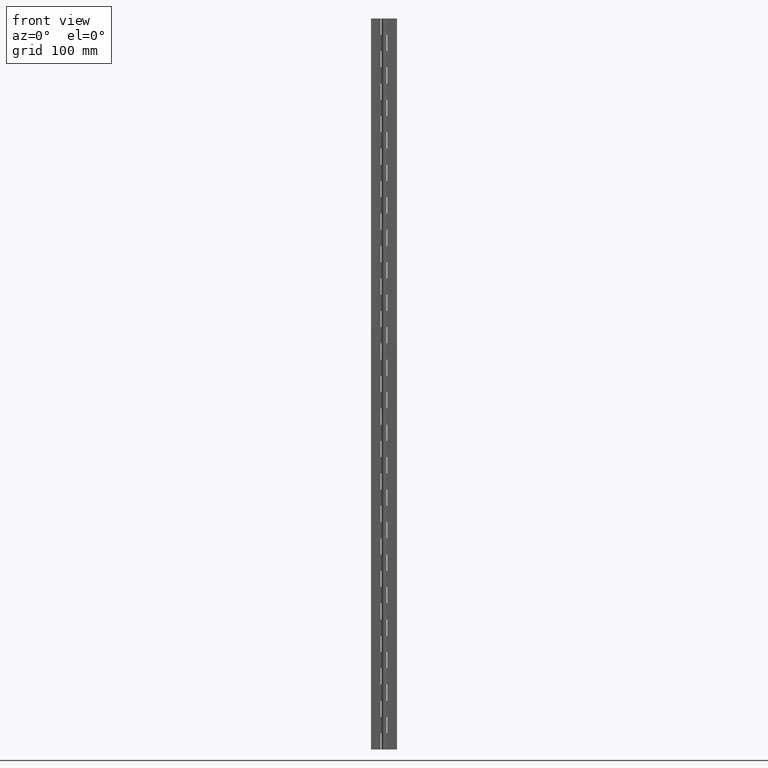
[diagram: clean part render]
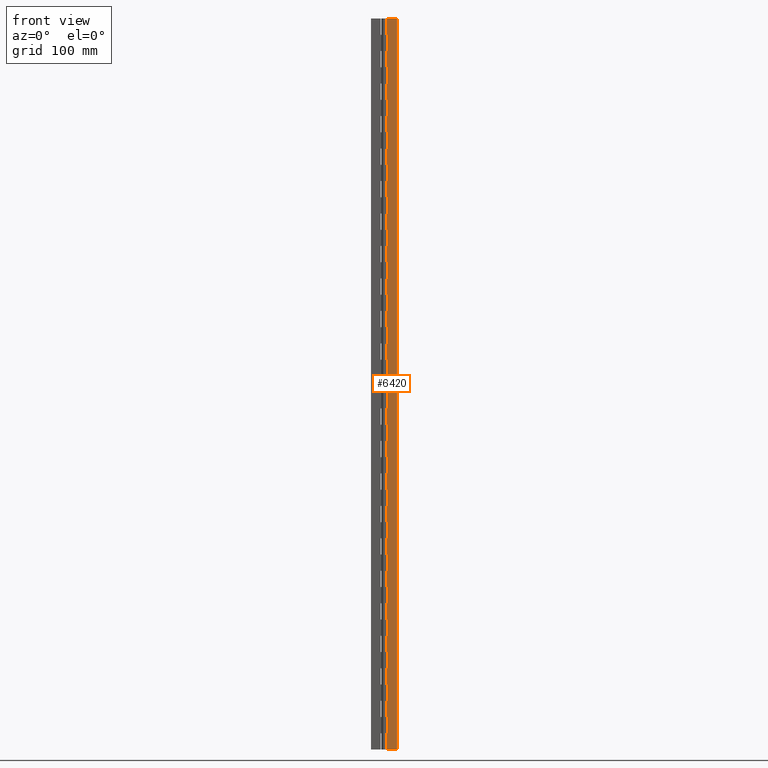
[diagram: same view with one face highlighted and labeled with its STEP entity id]
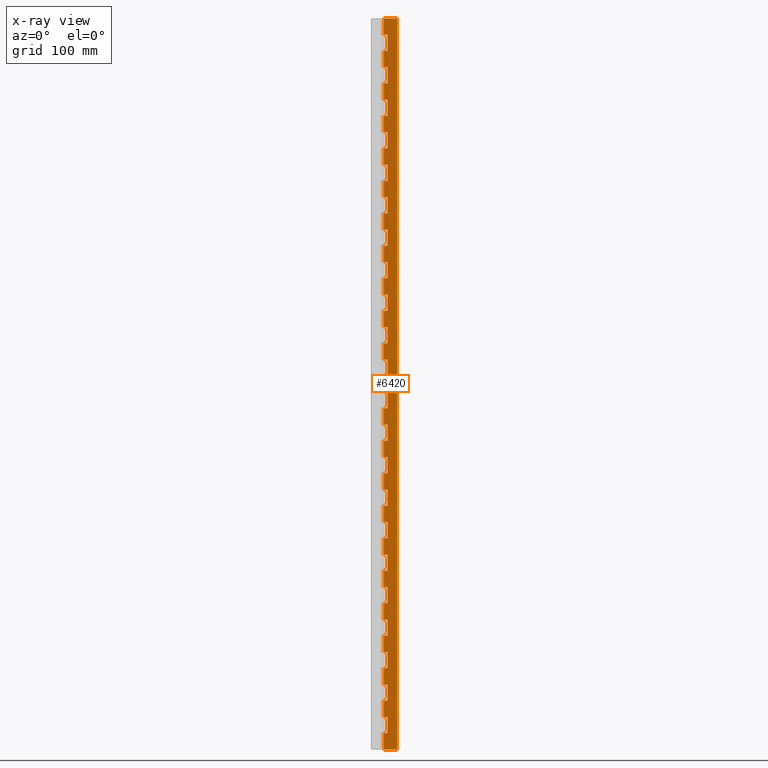
[diagram: x-ray of the same camera — body ghosted, the highlighted face saturated]
A machine part, front view. The second image highlights one B-rep face of the part: STEP entity #6420.
The next image is the same camera in x-ray: the body ghosted, the highlighted face saturated — about 0% of this face is hidden behind the body in this view.
In plain terms, the highlighted face is a freeform B-spline surface patch.
Its self-contained STEP definition (entity closure, byte-faithful):
#300=CARTESIAN_POINT('',(0.0,1.750000000000000,40.000021999999952));
#301=VERTEX_POINT('',#300);
#358=CARTESIAN_POINT('',(4.0,1.750000000000030,40.000021999999952));
#359=VERTEX_POINT('',#358);
#365=CARTESIAN_POINT('',(0.0,1.750000000000000,40.000021999999952));
#366=CARTESIAN_POINT('',(4.0,1.750000000000030,40.000021999999952));
#367=QUASI_UNIFORM_CURVE('',1,(#365,#366),.UNSPECIFIED.,.F.,.U.);
#368=EDGE_CURVE('',#301,#359,#367,.T.);
#386=CARTESIAN_POINT('',(4.0,1.750000000000030,20.000022000000051));
#387=VERTEX_POINT('',#386);
#393=CARTESIAN_POINT('',(4.0,1.750000000000030,40.000021999999952));
#394=CARTESIAN_POINT('',(4.0,1.750000000000030,20.000022000000051));
#395=QUASI_UNIFORM_CURVE('',1,(#393,#394),.UNSPECIFIED.,.F.,.U.);
#396=EDGE_CURVE('',#359,#387,#395,.T.);
#442=CARTESIAN_POINT('',(0.0,1.750000000000000,20.000022000000051));
#443=VERTEX_POINT('',#442);
#463=CARTESIAN_POINT('',(4.0,1.750000000000030,20.000022000000051));
#464=CARTESIAN_POINT('',(0.0,1.750000000000000,20.000022000000051));
#465=QUASI_UNIFORM_CURVE('',1,(#463,#464),.UNSPECIFIED.,.F.,.U.);
#466=EDGE_CURVE('',#387,#443,#465,.T.);
#476=CARTESIAN_POINT('',(0.0,1.750000000000000,80.000021999999888));
#477=VERTEX_POINT('',#476);
#534=CARTESIAN_POINT('',(4.0,1.750000000000030,80.000021999999888));
#535=VERTEX_POINT('',#534);
#541=CARTESIAN_POINT('',(0.0,1.750000000000000,80.000021999999888));
#542=CARTESIAN_POINT('',(4.0,1.750000000000030,80.000021999999888));
#543=QUASI_UNIFORM_CURVE('',1,(#541,#542),.UNSPECIFIED.,.F.,.U.);
#544=EDGE_CURVE('',#477,#535,#543,.T.);
#562=CARTESIAN_POINT('',(4.0,1.750000000000030,60.000022000000001));
#563=VERTEX_POINT('',#562);
#569=CARTESIAN_POINT('',(4.0,1.750000000000030,80.000021999999888));
#570=CARTESIAN_POINT('',(4.0,1.750000000000030,60.000022000000001));
#571=QUASI_UNIFORM_CURVE('',1,(#569,#570),.UNSPECIFIED.,.F.,.U.);
#572=EDGE_CURVE('',#535,#563,#571,.T.);
#618=CARTESIAN_POINT('',(0.0,1.750000000000000,60.000022000000001));
#619=VERTEX_POINT('',#618);
#639=CARTESIAN_POINT('',(4.0,1.750000000000030,60.000022000000001));
#640=CARTESIAN_POINT('',(0.0,1.750000000000000,60.000022000000001));
#641=QUASI_UNIFORM_CURVE('',1,(#639,#640),.UNSPECIFIED.,.F.,.U.);
#642=EDGE_CURVE('',#563,#619,#641,.T.);
#652=CARTESIAN_POINT('',(0.0,1.750000000000000,120.000022000000000));
#653=VERTEX_POINT('',#652);
#710=CARTESIAN_POINT('',(4.0,1.750000000000030,120.000022000000000));
#711=VERTEX_POINT('',#710);
#717=CARTESIAN_POINT('',(0.0,1.750000000000000,120.000022000000000));
#718=CARTESIAN_POINT('',(4.0,1.750000000000030,120.000022000000000));
#719=QUASI_UNIFORM_CURVE('',1,(#717,#718),.UNSPECIFIED.,.F.,.U.);
#720=EDGE_CURVE('',#653,#711,#719,.T.);
#738=CARTESIAN_POINT('',(4.0,1.750000000000030,100.000022000000000));
#739=VERTEX_POINT('',#738);
#745=CARTESIAN_POINT('',(4.0,1.750000000000030,120.000022000000000));
#746=CARTESIAN_POINT('',(4.0,1.750000000000030,100.000022000000000));
#747=QUASI_UNIFORM_CURVE('',1,(#745,#746),.UNSPECIFIED.,.F.,.U.);
#748=EDGE_CURVE('',#711,#739,#747,.T.);
#794=CARTESIAN_POINT('',(0.0,1.750000000000000,100.000022000000000));
#795=VERTEX_POINT('',#794);
#815=CARTESIAN_POINT('',(4.0,1.750000000000030,100.000022000000000));
#816=CARTESIAN_POINT('',(0.0,1.750000000000000,100.000022000000000));
#817=QUASI_UNIFORM_CURVE('',1,(#815,#816),.UNSPECIFIED.,.F.,.U.);
#818=EDGE_CURVE('',#739,#795,#817,.T.);
#828=CARTESIAN_POINT('',(0.0,1.750000000000000,160.000022000000000));
#829=VERTEX_POINT('',#828);
#886=CARTESIAN_POINT('',(4.0,1.750000000000030,160.000022000000000));
#887=VERTEX_POINT('',#886);
#893=CARTESIAN_POINT('',(0.0,1.750000000000000,160.000022000000000));
#894=CARTESIAN_POINT('',(4.0,1.750000000000030,160.000022000000000));
#895=QUASI_UNIFORM_CURVE('',1,(#893,#894),.UNSPECIFIED.,.F.,.U.);
#896=EDGE_CURVE('',#829,#887,#895,.T.);
#914=CARTESIAN_POINT('',(4.0,1.750000000000030,140.000022000000000));
#915=VERTEX_POINT('',#914);
#921=CARTESIAN_POINT('',(4.0,1.750000000000030,160.000022000000000));
#922=CARTESIAN_POINT('',(4.0,1.750000000000030,140.000022000000000));
#923=QUASI_UNIFORM_CURVE('',1,(#921,#922),.UNSPECIFIED.,.F.,.U.);
#924=EDGE_CURVE('',#887,#915,#923,.T.);
#970=CARTESIAN_POINT('',(0.0,1.750000000000000,140.000022000000000));
#971=VERTEX_POINT('',#970);
#991=CARTESIAN_POINT('',(4.0,1.750000000000030,140.000022000000000));
#992=CARTESIAN_POINT('',(0.0,1.750000000000000,140.000022000000000));
#993=QUASI_UNIFORM_CURVE('',1,(#991,#992),.UNSPECIFIED.,.F.,.U.);
#994=EDGE_CURVE('',#915,#971,#993,.T.);
#1004=CARTESIAN_POINT('',(0.0,1.750000000000000,200.000022000000000));
#1005=VERTEX_POINT('',#1004);
#1062=CARTESIAN_POINT('',(4.0,1.750000000000030,200.000022000000000));
#1063=VERTEX_POINT('',#1062);
#1069=CARTESIAN_POINT('',(0.0,1.750000000000000,200.000022000000000));
#1070=CARTESIAN_POINT('',(4.0,1.750000000000030,200.000022000000000));
#1071=QUASI_UNIFORM_CURVE('',1,(#1069,#1070),.UNSPECIFIED.,.F.,.U.);
#1072=EDGE_CURVE('',#1005,#1063,#1071,.T.);
#1090=CARTESIAN_POINT('',(4.0,1.750000000000030,180.000022000000000));
#1091=VERTEX_POINT('',#1090);
#1097=CARTESIAN_POINT('',(4.0,1.750000000000030,200.000022000000000));
#1098=CARTESIAN_POINT('',(4.0,1.750000000000030,180.000022000000000));
#1099=QUASI_UNIFORM_CURVE('',1,(#1097,#1098),.UNSPECIFIED.,.F.,.U.);
#1100=EDGE_CURVE('',#1063,#1091,#1099,.T.);
#1146=CARTESIAN_POINT('',(0.0,1.750000000000000,180.000022000000000));
#1147=VERTEX_POINT('',#1146);
#1167=CARTESIAN_POINT('',(4.0,1.750000000000030,180.000022000000000));
#1168=CARTESIAN_POINT('',(0.0,1.750000000000000,180.000022000000000));
#1169=QUASI_UNIFORM_CURVE('',1,(#1167,#1168),.UNSPECIFIED.,.F.,.U.);
#1170=EDGE_CURVE('',#1091,#1147,#1169,.T.);
#1180=CARTESIAN_POINT('',(0.0,1.750000000000000,240.000022000000000));
#1181=VERTEX_POINT('',#1180);
#1238=CARTESIAN_POINT('',(4.0,1.750000000000030,240.000022000000000));
#1239=VERTEX_POINT('',#1238);
#1245=CARTESIAN_POINT('',(0.0,1.750000000000000,240.000022000000000));
#1246=CARTESIAN_POINT('',(4.0,1.750000000000030,240.000022000000000));
#1247=QUASI_UNIFORM_CURVE('',1,(#1245,#1246),.UNSPECIFIED.,.F.,.U.);
#1248=EDGE_CURVE('',#1181,#1239,#1247,.T.);
#1266=CARTESIAN_POINT('',(4.0,1.750000000000030,220.000022000000000));
#1267=VERTEX_POINT('',#1266);
#1273=CARTESIAN_POINT('',(4.0,1.750000000000030,240.000022000000000));
#1274=CARTESIAN_POINT('',(4.0,1.750000000000030,220.000022000000000));
#1275=QUASI_UNIFORM_CURVE('',1,(#1273,#1274),.UNSPECIFIED.,.F.,.U.);
#1276=EDGE_CURVE('',#1239,#1267,#1275,.T.);
#1322=CARTESIAN_POINT('',(0.0,1.750000000000000,220.000022000000000));
#1323=VERTEX_POINT('',#1322);
#1343=CARTESIAN_POINT('',(4.0,1.750000000000030,220.000022000000000));
#1344=CARTESIAN_POINT('',(0.0,1.750000000000000,220.000022000000000));
#1345=QUASI_UNIFORM_CURVE('',1,(#1343,#1344),.UNSPECIFIED.,.F.,.U.);
#1346=EDGE_CURVE('',#1267,#1323,#1345,.T.);
#1356=CARTESIAN_POINT('',(0.0,1.750000000000000,280.000022000000000));
#1357=VERTEX_POINT('',#1356);
#1414=CARTESIAN_POINT('',(4.0,1.750000000000030,280.000022000000000));
#1415=VERTEX_POINT('',#1414);
#1421=CARTESIAN_POINT('',(0.0,1.750000000000000,280.000022000000000));
#1422=CARTESIAN_POINT('',(4.0,1.750000000000030,280.000022000000000));
#1423=QUASI_UNIFORM_CURVE('',1,(#1421,#1422),.UNSPECIFIED.,.F.,.U.);
#1424=EDGE_CURVE('',#1357,#1415,#1423,.T.);
#1442=CARTESIAN_POINT('',(4.0,1.750000000000030,260.000022000000000));
#1443=VERTEX_POINT('',#1442);
#1449=CARTESIAN_POINT('',(4.0,1.750000000000030,280.000022000000000));
#1450=CARTESIAN_POINT('',(4.0,1.750000000000030,260.000022000000000));
#1451=QUASI_UNIFORM_CURVE('',1,(#1449,#1450),.UNSPECIFIED.,.F.,.U.);
#1452=EDGE_CURVE('',#1415,#1443,#1451,.T.);
#1498=CARTESIAN_POINT('',(0.0,1.750000000000000,260.000022000000000));
#1499=VERTEX_POINT('',#1498);
#1519=CARTESIAN_POINT('',(4.0,1.750000000000030,260.000022000000000));
#1520=CARTESIAN_POINT('',(0.0,1.750000000000000,260.000022000000000));
#1521=QUASI_UNIFORM_CURVE('',1,(#1519,#1520),.UNSPECIFIED.,.F.,.U.);
#1522=EDGE_CURVE('',#1443,#1499,#1521,.T.);
#1532=CARTESIAN_POINT('',(0.0,1.750000000000000,320.000022000000000));
#1533=VERTEX_POINT('',#1532);
#1590=CARTESIAN_POINT('',(4.0,1.750000000000030,320.000022000000000));
#1591=VERTEX_POINT('',#1590);
#1597=CARTESIAN_POINT('',(0.0,1.750000000000000,320.000022000000000));
#1598=CARTESIAN_POINT('',(4.0,1.750000000000030,320.000022000000000));
#1599=QUASI_UNIFORM_CURVE('',1,(#1597,#1598),.UNSPECIFIED.,.F.,.U.);
#1600=EDGE_CURVE('',#1533,#1591,#1599,.T.);
#1618=CARTESIAN_POINT('',(4.0,1.750000000000030,300.000022000000000));
#1619=VERTEX_POINT('',#1618);
#1625=CARTESIAN_POINT('',(4.0,1.750000000000030,320.000022000000000));
#1626=CARTESIAN_POINT('',(4.0,1.750000000000030,300.000022000000000));
#1627=QUASI_UNIFORM_CURVE('',1,(#1625,#1626),.UNSPECIFIED.,.F.,.U.);
#1628=EDGE_CURVE('',#1591,#1619,#1627,.T.);
#1674=CARTESIAN_POINT('',(0.0,1.750000000000000,300.000022000000000));
#1675=VERTEX_POINT('',#1674);
#1695=CARTESIAN_POINT('',(4.0,1.750000000000030,300.000022000000000));
#1696=CARTESIAN_POINT('',(0.0,1.750000000000000,300.000022000000000));
#1697=QUASI_UNIFORM_CURVE('',1,(#1695,#1696),.UNSPECIFIED.,.F.,.U.);
#1698=EDGE_CURVE('',#1619,#1675,#1697,.T.);
#1708=CARTESIAN_POINT('',(0.0,1.750000000000000,360.000022000000000));
#1709=VERTEX_POINT('',#1708);
#1766=CARTESIAN_POINT('',(4.0,1.750000000000030,360.000022000000000));
#1767=VERTEX_POINT('',#1766);
#1773=CARTESIAN_POINT('',(0.0,1.750000000000000,360.000022000000000));
#1774=CARTESIAN_POINT('',(4.0,1.750000000000030,360.000022000000000));
#1775=QUASI_UNIFORM_CURVE('',1,(#1773,#1774),.UNSPECIFIED.,.F.,.U.);
#1776=EDGE_CURVE('',#1709,#1767,#1775,.T.);
#1794=CARTESIAN_POINT('',(4.0,1.750000000000030,340.000022000000000));
#1795=VERTEX_POINT('',#1794);
#1801=CARTESIAN_POINT('',(4.0,1.750000000000030,360.000022000000000));
#1802=CARTESIAN_POINT('',(4.0,1.750000000000030,340.000022000000000));
#1803=QUASI_UNIFORM_CURVE('',1,(#1801,#1802),.UNSPECIFIED.,.F.,.U.);
#1804=EDGE_CURVE('',#1767,#1795,#1803,.T.);
#1850=CARTESIAN_POINT('',(0.0,1.750000000000000,340.000022000000000));
#1851=VERTEX_POINT('',#1850);
#1871=CARTESIAN_POINT('',(4.0,1.750000000000030,340.000022000000000));
#1872=CARTESIAN_POINT('',(0.0,1.750000000000000,340.000022000000000));
#1873=QUASI_UNIFORM_CURVE('',1,(#1871,#1872),.UNSPECIFIED.,.F.,.U.);
#1874=EDGE_CURVE('',#1795,#1851,#1873,.T.);
#1884=CARTESIAN_POINT('',(0.0,1.750000000000000,400.000022000000000));
#1885=VERTEX_POINT('',#1884);
#1942=CARTESIAN_POINT('',(4.0,1.750000000000030,400.000022000000000));
#1943=VERTEX_POINT('',#1942);
#1949=CARTESIAN_POINT('',(0.0,1.750000000000000,400.000022000000000));
#1950=CARTESIAN_POINT('',(4.0,1.750000000000030,400.000022000000000));
#1951=QUASI_UNIFORM_CURVE('',1,(#1949,#1950),.UNSPECIFIED.,.F.,.U.);
#1952=EDGE_CURVE('',#1885,#1943,#1951,.T.);
#1970=CARTESIAN_POINT('',(4.0,1.750000000000030,380.000022000000000));
#1971=VERTEX_POINT('',#1970);
#1977=CARTESIAN_POINT('',(4.0,1.750000000000030,400.000022000000000));
#1978=CARTESIAN_POINT('',(4.0,1.750000000000030,380.000022000000000));
#1979=QUASI_UNIFORM_CURVE('',1,(#1977,#1978),.UNSPECIFIED.,.F.,.U.);
#1980=EDGE_CURVE('',#1943,#1971,#1979,.T.);
#2026=CARTESIAN_POINT('',(0.0,1.750000000000000,380.000022000000000));
#2027=VERTEX_POINT('',#2026);
#2047=CARTESIAN_POINT('',(4.0,1.750000000000030,380.000022000000000));
#2048=CARTESIAN_POINT('',(0.0,1.750000000000000,380.000022000000000));
#2049=QUASI_UNIFORM_CURVE('',1,(#2047,#2048),.UNSPECIFIED.,.F.,.U.);
#2050=EDGE_CURVE('',#1971,#2027,#2049,.T.);
#2060=CARTESIAN_POINT('',(0.0,1.750000000000000,440.000022000000000));
#2061=VERTEX_POINT('',#2060);
#2118=CARTESIAN_POINT('',(4.0,1.750000000000030,440.000022000000000));
#2119=VERTEX_POINT('',#2118);
#2125=CARTESIAN_POINT('',(0.0,1.750000000000000,440.000022000000000));
#2126=CARTESIAN_POINT('',(4.0,1.750000000000030,440.000022000000000));
#2127=QUASI_UNIFORM_CURVE('',1,(#2125,#2126),.UNSPECIFIED.,.F.,.U.);
#2128=EDGE_CURVE('',#2061,#2119,#2127,.T.);
#2146=CARTESIAN_POINT('',(4.0,1.750000000000030,420.000021999999890));
#2147=VERTEX_POINT('',#2146);
#2153=CARTESIAN_POINT('',(4.0,1.750000000000030,440.000022000000000));
#2154=CARTESIAN_POINT('',(4.0,1.750000000000030,420.000021999999890));
#2155=QUASI_UNIFORM_CURVE('',1,(#2153,#2154),.UNSPECIFIED.,.F.,.U.);
#2156=EDGE_CURVE('',#2119,#2147,#2155,.T.);
#2202=CARTESIAN_POINT('',(0.0,1.750000000000000,420.000021999999890));
#2203=VERTEX_POINT('',#2202);
#2223=CARTESIAN_POINT('',(4.0,1.750000000000030,420.000021999999890));
#2224=CARTESIAN_POINT('',(0.0,1.750000000000000,420.000021999999890));
#2225=QUASI_UNIFORM_CURVE('',1,(#2223,#2224),.UNSPECIFIED.,.F.,.U.);
#2226=EDGE_CURVE('',#2147,#2203,#2225,.T.);
#2236=CARTESIAN_POINT('',(0.0,1.750000000000000,480.000022000000000));
#2237=VERTEX_POINT('',#2236);
#2294=CARTESIAN_POINT('',(4.0,1.750000000000030,480.000022000000000));
#2295=VERTEX_POINT('',#2294);
#2301=CARTESIAN_POINT('',(0.0,1.750000000000000,480.000022000000000));
#2302=CARTESIAN_POINT('',(4.0,1.750000000000030,480.000022000000000));
#2303=QUASI_UNIFORM_CURVE('',1,(#2301,#2302),.UNSPECIFIED.,.F.,.U.);
#2304=EDGE_CURVE('',#2237,#2295,#2303,.T.);
#2322=CARTESIAN_POINT('',(4.0,1.750000000000030,460.000022000000000));
#2323=VERTEX_POINT('',#2322);
#2329=CARTESIAN_POINT('',(4.0,1.750000000000030,480.000022000000000));
#2330=CARTESIAN_POINT('',(4.0,1.750000000000030,460.000022000000000));
#2331=QUASI_UNIFORM_CURVE('',1,(#2329,#2330),.UNSPECIFIED.,.F.,.U.);
#2332=EDGE_CURVE('',#2295,#2323,#2331,.T.);
#2378=CARTESIAN_POINT('',(0.0,1.750000000000000,460.000022000000000));
#2379=VERTEX_POINT('',#2378);
#2399=CARTESIAN_POINT('',(4.0,1.750000000000030,460.000022000000000));
#2400=CARTESIAN_POINT('',(0.0,1.750000000000000,460.000022000000000));
#2401=QUASI_UNIFORM_CURVE('',1,(#2399,#2400),.UNSPECIFIED.,.F.,.U.);
#2402=EDGE_CURVE('',#2323,#2379,#2401,.T.);
#2412=CARTESIAN_POINT('',(0.0,1.750000000000000,520.000021999999940));
#2413=VERTEX_POINT('',#2412);
#2470=CARTESIAN_POINT('',(4.0,1.750000000000030,520.000021999999940));
#2471=VERTEX_POINT('',#2470);
#2477=CARTESIAN_POINT('',(0.0,1.750000000000000,520.000021999999940));
#2478=CARTESIAN_POINT('',(4.0,1.750000000000030,520.000021999999940));
#2479=QUASI_UNIFORM_CURVE('',1,(#2477,#2478),.UNSPECIFIED.,.F.,.U.);
#2480=EDGE_CURVE('',#2413,#2471,#2479,.T.);
#2498=CARTESIAN_POINT('',(4.0,1.750000000000030,500.000022000000110));
#2499=VERTEX_POINT('',#2498);
#2505=CARTESIAN_POINT('',(4.0,1.750000000000030,520.000021999999940));
#2506=CARTESIAN_POINT('',(4.0,1.750000000000030,500.000022000000110));
#2507=QUASI_UNIFORM_CURVE('',1,(#2505,#2506),.UNSPECIFIED.,.F.,.U.);
#2508=EDGE_CURVE('',#2471,#2499,#2507,.T.);
#2554=CARTESIAN_POINT('',(0.0,1.750000000000000,500.000022000000110));
#2555=VERTEX_POINT('',#2554);
#2575=CARTESIAN_POINT('',(4.0,1.750000000000030,500.000022000000110));
#2576=CARTESIAN_POINT('',(0.0,1.750000000000000,500.000022000000110));
#2577=QUASI_UNIFORM_CURVE('',1,(#2575,#2576),.UNSPECIFIED.,.F.,.U.);
#2578=EDGE_CURVE('',#2499,#2555,#2577,.T.);
#2588=CARTESIAN_POINT('',(0.0,1.750000000000000,560.000021999999940));
#2589=VERTEX_POINT('',#2588);
#2646=CARTESIAN_POINT('',(4.0,1.750000000000030,560.000021999999940));
#2647=VERTEX_POINT('',#2646);
#2653=CARTESIAN_POINT('',(0.0,1.750000000000000,560.000021999999940));
#2654=CARTESIAN_POINT('',(4.0,1.750000000000030,560.000021999999940));
#2655=QUASI_UNIFORM_CURVE('',1,(#2653,#2654),.UNSPECIFIED.,.F.,.U.);
#2656=EDGE_CURVE('',#2589,#2647,#2655,.T.);
#2674=CARTESIAN_POINT('',(4.0,1.750000000000030,540.000021999999940));
#2675=VERTEX_POINT('',#2674);
#2681=CARTESIAN_POINT('',(4.0,1.750000000000030,560.000021999999940));
#2682=CARTESIAN_POINT('',(4.0,1.750000000000030,540.000021999999940));
#2683=QUASI_UNIFORM_CURVE('',1,(#2681,#2682),.UNSPECIFIED.,.F.,.U.);
#2684=EDGE_CURVE('',#2647,#2675,#2683,.T.);
#2730=CARTESIAN_POINT('',(0.0,1.750000000000000,540.000021999999940));
#2731=VERTEX_POINT('',#2730);
#2751=CARTESIAN_POINT('',(4.0,1.750000000000030,540.000021999999940));
#2752=CARTESIAN_POINT('',(0.0,1.750000000000000,540.000021999999940));
#2753=QUASI_UNIFORM_CURVE('',1,(#2751,#2752),.UNSPECIFIED.,.F.,.U.);
#2754=EDGE_CURVE('',#2675,#2731,#2753,.T.);
#2764=CARTESIAN_POINT('',(0.0,1.750000000000000,600.000022000000060));
#2765=VERTEX_POINT('',#2764);
#2822=CARTESIAN_POINT('',(4.0,1.750000000000030,600.000022000000060));
#2823=VERTEX_POINT('',#2822);
#2829=CARTESIAN_POINT('',(0.0,1.750000000000000,600.000022000000060));
#2830=CARTESIAN_POINT('',(4.0,1.750000000000030,600.000022000000060));
#2831=QUASI_UNIFORM_CURVE('',1,(#2829,#2830),.UNSPECIFIED.,.F.,.U.);
#2832=EDGE_CURVE('',#2765,#2823,#2831,.T.);
#2850=CARTESIAN_POINT('',(4.0,1.750000000000030,580.000022000000060));
#2851=VERTEX_POINT('',#2850);
#2857=CARTESIAN_POINT('',(4.0,1.750000000000030,600.000022000000060));
#2858=CARTESIAN_POINT('',(4.0,1.750000000000030,580.000022000000060));
#2859=QUASI_UNIFORM_CURVE('',1,(#2857,#2858),.UNSPECIFIED.,.F.,.U.);
#2860=EDGE_CURVE('',#2823,#2851,#2859,.T.);
#2906=CARTESIAN_POINT('',(0.0,1.750000000000000,580.000022000000060));
#2907=VERTEX_POINT('',#2906);
#2927=CARTESIAN_POINT('',(4.0,1.750000000000030,580.000022000000060));
#2928=CARTESIAN_POINT('',(0.0,1.750000000000000,580.000022000000060));
#2929=QUASI_UNIFORM_CURVE('',1,(#2927,#2928),.UNSPECIFIED.,.F.,.U.);
#2930=EDGE_CURVE('',#2851,#2907,#2929,.T.);
#2940=CARTESIAN_POINT('',(0.0,1.750000000000000,640.000021999999940));
#2941=VERTEX_POINT('',#2940);
#2998=CARTESIAN_POINT('',(4.0,1.750000000000030,640.000021999999940));
#2999=VERTEX_POINT('',#2998);
#3005=CARTESIAN_POINT('',(0.0,1.750000000000000,640.000021999999940));
#3006=CARTESIAN_POINT('',(4.0,1.750000000000030,640.000021999999940));
#3007=QUASI_UNIFORM_CURVE('',1,(#3005,#3006),.UNSPECIFIED.,.F.,.U.);
#3008=EDGE_CURVE('',#2941,#2999,#3007,.T.);
#3026=CARTESIAN_POINT('',(4.0,1.750000000000030,620.000022000000060));
#3027=VERTEX_POINT('',#3026);
#3033=CARTESIAN_POINT('',(4.0,1.750000000000030,640.000021999999940));
#3034=CARTESIAN_POINT('',(4.0,1.750000000000030,620.000022000000060));
#3035=QUASI_UNIFORM_CURVE('',1,(#3033,#3034),.UNSPECIFIED.,.F.,.U.);
#3036=EDGE_CURVE('',#2999,#3027,#3035,.T.);
#3082=CARTESIAN_POINT('',(0.0,1.750000000000000,620.000022000000060));
#3083=VERTEX_POINT('',#3082);
#3103=CARTESIAN_POINT('',(4.0,1.750000000000030,620.000022000000060));
#3104=CARTESIAN_POINT('',(0.0,1.750000000000000,620.000022000000060));
#3105=QUASI_UNIFORM_CURVE('',1,(#3103,#3104),.UNSPECIFIED.,.F.,.U.);
#3106=EDGE_CURVE('',#3027,#3083,#3105,.T.);
#3116=CARTESIAN_POINT('',(0.0,1.750000000000000,680.000021999999940));
#3117=VERTEX_POINT('',#3116);
#3174=CARTESIAN_POINT('',(4.0,1.750000000000030,680.000021999999940));
#3175=VERTEX_POINT('',#3174);
#3181=CARTESIAN_POINT('',(0.0,1.750000000000000,680.000021999999940));
#3182=CARTESIAN_POINT('',(4.0,1.750000000000030,680.000021999999940));
#3183=QUASI_UNIFORM_CURVE('',1,(#3181,#3182),.UNSPECIFIED.,.F.,.U.);
#3184=EDGE_CURVE('',#3117,#3175,#3183,.T.);
#3202=CARTESIAN_POINT('',(4.0,1.750000000000030,660.000021999999940));
#3203=VERTEX_POINT('',#3202);
#3209=CARTESIAN_POINT('',(4.0,1.750000000000030,680.000021999999940));
#3210=CARTESIAN_POINT('',(4.0,1.750000000000030,660.000021999999940));
#3211=QUASI_UNIFORM_CURVE('',1,(#3209,#3210),.UNSPECIFIED.,.F.,.U.);
#3212=EDGE_CURVE('',#3175,#3203,#3211,.T.);
#3258=CARTESIAN_POINT('',(0.0,1.750000000000000,660.000021999999940));
#3259=VERTEX_POINT('',#3258);
#3279=CARTESIAN_POINT('',(4.0,1.750000000000030,660.000021999999940));
#3280=CARTESIAN_POINT('',(0.0,1.750000000000000,660.000021999999940));
#3281=QUASI_UNIFORM_CURVE('',1,(#3279,#3280),.UNSPECIFIED.,.F.,.U.);
#3282=EDGE_CURVE('',#3203,#3259,#3281,.T.);
#3292=CARTESIAN_POINT('',(0.0,1.750000000000000,720.000022000000060));
#3293=VERTEX_POINT('',#3292);
#3350=CARTESIAN_POINT('',(4.0,1.750000000000030,720.000022000000060));
#3351=VERTEX_POINT('',#3350);
#3357=CARTESIAN_POINT('',(0.0,1.750000000000000,720.000022000000060));
#3358=CARTESIAN_POINT('',(4.0,1.750000000000030,720.000022000000060));
#3359=QUASI_UNIFORM_CURVE('',1,(#3357,#3358),.UNSPECIFIED.,.F.,.U.);
#3360=EDGE_CURVE('',#3293,#3351,#3359,.T.);
#3378=CARTESIAN_POINT('',(4.0,1.750000000000030,700.000021999999940));
#3379=VERTEX_POINT('',#3378);
#3385=CARTESIAN_POINT('',(4.0,1.750000000000030,720.000022000000060));
#3386=CARTESIAN_POINT('',(4.0,1.750000000000030,700.000021999999940));
#3387=QUASI_UNIFORM_CURVE('',1,(#3385,#3386),.UNSPECIFIED.,.F.,.U.);
#3388=EDGE_CURVE('',#3351,#3379,#3387,.T.);
#3434=CARTESIAN_POINT('',(0.0,1.750000000000000,700.000021999999940));
#3435=VERTEX_POINT('',#3434);
#3455=CARTESIAN_POINT('',(4.0,1.750000000000030,700.000021999999940));
#3456=CARTESIAN_POINT('',(0.0,1.750000000000000,700.000021999999940));
#3457=QUASI_UNIFORM_CURVE('',1,(#3455,#3456),.UNSPECIFIED.,.F.,.U.);
#3458=EDGE_CURVE('',#3379,#3435,#3457,.T.);
#3468=CARTESIAN_POINT('',(0.0,1.750000000000000,760.000022000000060));
#3469=VERTEX_POINT('',#3468);
#3526=CARTESIAN_POINT('',(4.0,1.750000000000030,760.000022000000060));
#3527=VERTEX_POINT('',#3526);
#3533=CARTESIAN_POINT('',(0.0,1.750000000000000,760.000022000000060));
#3534=CARTESIAN_POINT('',(4.0,1.750000000000030,760.000022000000060));
#3535=QUASI_UNIFORM_CURVE('',1,(#3533,#3534),.UNSPECIFIED.,.F.,.U.);
#3536=EDGE_CURVE('',#3469,#3527,#3535,.T.);
#3554=CARTESIAN_POINT('',(4.0,1.750000000000030,740.000022000000060));
#3555=VERTEX_POINT('',#3554);
#3561=CARTESIAN_POINT('',(4.0,1.750000000000030,760.000022000000060));
#3562=CARTESIAN_POINT('',(4.0,1.750000000000030,740.000022000000060));
#3563=QUASI_UNIFORM_CURVE('',1,(#3561,#3562),.UNSPECIFIED.,.F.,.U.);
#3564=EDGE_CURVE('',#3527,#3555,#3563,.T.);
#3610=CARTESIAN_POINT('',(0.0,1.750000000000000,740.000022000000060));
#3611=VERTEX_POINT('',#3610);
#3631=CARTESIAN_POINT('',(4.0,1.750000000000030,740.000022000000060));
#3632=CARTESIAN_POINT('',(0.0,1.750000000000000,740.000022000000060));
#3633=QUASI_UNIFORM_CURVE('',1,(#3631,#3632),.UNSPECIFIED.,.F.,.U.);
#3634=EDGE_CURVE('',#3555,#3611,#3633,.T.);
#3644=CARTESIAN_POINT('',(0.0,1.750000000000000,800.000021999999940));
#3645=VERTEX_POINT('',#3644);
#3702=CARTESIAN_POINT('',(4.0,1.750000000000030,800.000021999999940));
#3703=VERTEX_POINT('',#3702);
#3709=CARTESIAN_POINT('',(0.0,1.750000000000000,800.000021999999940));
#3710=CARTESIAN_POINT('',(4.0,1.750000000000030,800.000021999999940));
#3711=QUASI_UNIFORM_CURVE('',1,(#3709,#3710),.UNSPECIFIED.,.F.,.U.);
#3712=EDGE_CURVE('',#3645,#3703,#3711,.T.);
#3730=CARTESIAN_POINT('',(4.0,1.750000000000030,780.000021999999940));
#3731=VERTEX_POINT('',#3730);
#3737=CARTESIAN_POINT('',(4.0,1.750000000000030,800.000021999999940));
#3738=CARTESIAN_POINT('',(4.0,1.750000000000030,780.000021999999940));
#3739=QUASI_UNIFORM_CURVE('',1,(#3737,#3738),.UNSPECIFIED.,.F.,.U.);
#3740=EDGE_CURVE('',#3703,#3731,#3739,.T.);
#3786=CARTESIAN_POINT('',(0.0,1.750000000000000,780.000021999999940));
#3787=VERTEX_POINT('',#3786);
#3807=CARTESIAN_POINT('',(4.0,1.750000000000030,780.000021999999940));
#3808=CARTESIAN_POINT('',(0.0,1.750000000000000,780.000021999999940));
#3809=QUASI_UNIFORM_CURVE('',1,(#3807,#3808),.UNSPECIFIED.,.F.,.U.);
#3810=EDGE_CURVE('',#3731,#3787,#3809,.T.);
#3820=CARTESIAN_POINT('',(0.0,1.750000000000000,840.000022000000060));
#3821=VERTEX_POINT('',#3820);
#3878=CARTESIAN_POINT('',(4.0,1.750000000000030,840.000022000000060));
#3879=VERTEX_POINT('',#3878);
#3885=CARTESIAN_POINT('',(0.0,1.750000000000000,840.000022000000060));
#3886=CARTESIAN_POINT('',(4.0,1.750000000000030,840.000022000000060));
#3887=QUASI_UNIFORM_CURVE('',1,(#3885,#3886),.UNSPECIFIED.,.F.,.U.);
#3888=EDGE_CURVE('',#3821,#3879,#3887,.T.);
#3906=CARTESIAN_POINT('',(4.0,1.750000000000030,820.000021999999940));
#3907=VERTEX_POINT('',#3906);
#3913=CARTESIAN_POINT('',(4.0,1.750000000000030,840.000022000000060));
#3914=CARTESIAN_POINT('',(4.0,1.750000000000030,820.000021999999940));
#3915=QUASI_UNIFORM_CURVE('',1,(#3913,#3914),.UNSPECIFIED.,.F.,.U.);
#3916=EDGE_CURVE('',#3879,#3907,#3915,.T.);
#3962=CARTESIAN_POINT('',(0.0,1.750000000000000,820.000021999999940));
#3963=VERTEX_POINT('',#3962);
#3983=CARTESIAN_POINT('',(4.0,1.750000000000030,820.000021999999940));
#3984=CARTESIAN_POINT('',(0.0,1.750000000000000,820.000021999999940));
#3985=QUASI_UNIFORM_CURVE('',1,(#3983,#3984),.UNSPECIFIED.,.F.,.U.);
#3986=EDGE_CURVE('',#3907,#3963,#3985,.T.);
#3996=CARTESIAN_POINT('',(0.0,1.750000000000000,880.000022000000060));
#3997=VERTEX_POINT('',#3996);
#4054=CARTESIAN_POINT('',(4.0,1.750000000000030,880.000022000000060));
#4055=VERTEX_POINT('',#4054);
#4061=CARTESIAN_POINT('',(0.0,1.750000000000000,880.000022000000060));
#4062=CARTESIAN_POINT('',(4.0,1.750000000000030,880.000022000000060));
#4063=QUASI_UNIFORM_CURVE('',1,(#4061,#4062),.UNSPECIFIED.,.F.,.U.);
#4064=EDGE_CURVE('',#3997,#4055,#4063,.T.);
#4082=CARTESIAN_POINT('',(4.0,1.750000000000030,860.000022000000060));
#4083=VERTEX_POINT('',#4082);
#4089=CARTESIAN_POINT('',(4.0,1.750000000000030,880.000022000000060));
#4090=CARTESIAN_POINT('',(4.0,1.750000000000030,860.000022000000060));
#4091=QUASI_UNIFORM_CURVE('',1,(#4089,#4090),.UNSPECIFIED.,.F.,.U.);
#4092=EDGE_CURVE('',#4055,#4083,#4091,.T.);
#4138=CARTESIAN_POINT('',(0.0,1.750000000000000,860.000022000000060));
#4139=VERTEX_POINT('',#4138);
#4159=CARTESIAN_POINT('',(4.0,1.750000000000030,860.000022000000060));
#4160=CARTESIAN_POINT('',(0.0,1.750000000000000,860.000022000000060));
#4161=QUASI_UNIFORM_CURVE('',1,(#4159,#4160),.UNSPECIFIED.,.F.,.U.);
#4162=EDGE_CURVE('',#4083,#4139,#4161,.T.);
#4181=CARTESIAN_POINT('',(16.0,1.750000000000000,0.0));
#4182=VERTEX_POINT('',#4181);
#4188=CARTESIAN_POINT('',(0.0,1.750000000000000,0.0));
#4189=VERTEX_POINT('',#4188);
#4190=CARTESIAN_POINT('',(16.0,1.750000000000000,0.0));
#4191=CARTESIAN_POINT('',(0.0,1.750000000000000,0.0));
#4192=QUASI_UNIFORM_CURVE('',1,(#4190,#4191),.UNSPECIFIED.,.F.,.U.);
#4193=EDGE_CURVE('',#4182,#4189,#4192,.T.);
#4287=CARTESIAN_POINT('',(0.0,1.750000000000000,900.000021999999940));
#4288=VERTEX_POINT('',#4287);
#4308=CARTESIAN_POINT('',(16.0,1.750000000000000,900.000021999999940));
#4309=VERTEX_POINT('',#4308);
#4310=CARTESIAN_POINT('',(16.0,1.750000000000000,900.000021999999940));
#4311=CARTESIAN_POINT('',(0.0,1.750000000000000,900.000021999999940));
#4312=QUASI_UNIFORM_CURVE('',1,(#4310,#4311),.UNSPECIFIED.,.F.,.U.);
#4313=EDGE_CURVE('',#4309,#4288,#4312,.T.);
#4335=CARTESIAN_POINT('',(16.0,1.750000000000000,900.000021999999940));
#4336=CARTESIAN_POINT('',(16.0,1.750000000000000,0.0));
#4337=QUASI_UNIFORM_CURVE('',1,(#4335,#4336),.UNSPECIFIED.,.F.,.U.);
#4338=EDGE_CURVE('',#4309,#4182,#4337,.T.);
#4419=CARTESIAN_POINT('',(0.0,1.750000000000000,900.000021999999940));
#4420=CARTESIAN_POINT('',(0.0,1.750000000000000,880.000022000000060));
#4421=QUASI_UNIFORM_CURVE('',1,(#4419,#4420),.UNSPECIFIED.,.F.,.U.);
#4422=EDGE_CURVE('',#4288,#3997,#4421,.T.);
#4505=CARTESIAN_POINT('',(0.0,1.750000000000000,860.000022000000060));
#4506=CARTESIAN_POINT('',(0.0,1.750000000000000,840.000022000000060));
#4507=QUASI_UNIFORM_CURVE('',1,(#4505,#4506),.UNSPECIFIED.,.F.,.U.);
#4508=EDGE_CURVE('',#4139,#3821,#4507,.T.);
#4591=CARTESIAN_POINT('',(0.0,1.750000000000000,820.000021999999940));
#4592=CARTESIAN_POINT('',(0.0,1.750000000000000,800.000021999999940));
#4593=QUASI_UNIFORM_CURVE('',1,(#4591,#4592),.UNSPECIFIED.,.F.,.U.);
#4594=EDGE_CURVE('',#3963,#3645,#4593,.T.);
#4677=CARTESIAN_POINT('',(0.0,1.750000000000000,780.000021999999940));
#4678=CARTESIAN_POINT('',(0.0,1.750000000000000,760.000022000000060));
#4679=QUASI_UNIFORM_CURVE('',1,(#4677,#4678),.UNSPECIFIED.,.F.,.U.);
#4680=EDGE_CURVE('',#3787,#3469,#4679,.T.);
#4763=CARTESIAN_POINT('',(0.0,1.750000000000000,740.000022000000060));
#4764=CARTESIAN_POINT('',(0.0,1.750000000000000,720.000022000000060));
#4765=QUASI_UNIFORM_CURVE('',1,(#4763,#4764),.UNSPECIFIED.,.F.,.U.);
#4766=EDGE_CURVE('',#3611,#3293,#4765,.T.);
#4849=CARTESIAN_POINT('',(0.0,1.750000000000000,700.000021999999940));
#4850=CARTESIAN_POINT('',(0.0,1.750000000000000,680.000021999999940));
#4851=QUASI_UNIFORM_CURVE('',1,(#4849,#4850),.UNSPECIFIED.,.F.,.U.);
#4852=EDGE_CURVE('',#3435,#3117,#4851,.T.);
#4935=CARTESIAN_POINT('',(0.0,1.750000000000000,660.000021999999940));
#4936=CARTESIAN_POINT('',(0.0,1.750000000000000,640.000021999999940));
#4937=QUASI_UNIFORM_CURVE('',1,(#4935,#4936),.UNSPECIFIED.,.F.,.U.);
#4938=EDGE_CURVE('',#3259,#2941,#4937,.T.);
#5021=CARTESIAN_POINT('',(0.0,1.750000000000000,620.000022000000060));
#5022=CARTESIAN_POINT('',(0.0,1.750000000000000,600.000022000000060));
#5023=QUASI_UNIFORM_CURVE('',1,(#5021,#5022),.UNSPECIFIED.,.F.,.U.);
#5024=EDGE_CURVE('',#3083,#2765,#5023,.T.);
#5107=CARTESIAN_POINT('',(0.0,1.750000000000000,580.000022000000060));
#5108=CARTESIAN_POINT('',(0.0,1.750000000000000,560.000021999999940));
#5109=QUASI_UNIFORM_CURVE('',1,(#5107,#5108),.UNSPECIFIED.,.F.,.U.);
#5110=EDGE_CURVE('',#2907,#2589,#5109,.T.);
#5193=CARTESIAN_POINT('',(0.0,1.750000000000000,540.000021999999940));
#5194=CARTESIAN_POINT('',(0.0,1.750000000000000,520.000021999999940));
#5195=QUASI_UNIFORM_CURVE('',1,(#5193,#5194),.UNSPECIFIED.,.F.,.U.);
#5196=EDGE_CURVE('',#2731,#2413,#5195,.T.);
#5279=CARTESIAN_POINT('',(0.0,1.750000000000000,500.000022000000110));
#5280=CARTESIAN_POINT('',(0.0,1.750000000000000,480.000022000000000));
#5281=QUASI_UNIFORM_CURVE('',1,(#5279,#5280),.UNSPECIFIED.,.F.,.U.);
#5282=EDGE_CURVE('',#2555,#2237,#5281,.T.);
#5365=CARTESIAN_POINT('',(0.0,1.750000000000000,460.000022000000000));
#5366=CARTESIAN_POINT('',(0.0,1.750000000000000,440.000022000000000));
#5367=QUASI_UNIFORM_CURVE('',1,(#5365,#5366),.UNSPECIFIED.,.F.,.U.);
#5368=EDGE_CURVE('',#2379,#2061,#5367,.T.);
#5451=CARTESIAN_POINT('',(0.0,1.750000000000000,420.000021999999890));
#5452=CARTESIAN_POINT('',(0.0,1.750000000000000,400.000022000000000));
#5453=QUASI_UNIFORM_CURVE('',1,(#5451,#5452),.UNSPECIFIED.,.F.,.U.);
#5454=EDGE_CURVE('',#2203,#1885,#5453,.T.);
#5537=CARTESIAN_POINT('',(0.0,1.750000000000000,380.000022000000000));
#5538=CARTESIAN_POINT('',(0.0,1.750000000000000,360.000022000000000));
#5539=QUASI_UNIFORM_CURVE('',1,(#5537,#5538),.UNSPECIFIED.,.F.,.U.);
#5540=EDGE_CURVE('',#2027,#1709,#5539,.T.);
#5623=CARTESIAN_POINT('',(0.0,1.750000000000000,340.000022000000000));
#5624=CARTESIAN_POINT('',(0.0,1.750000000000000,320.000022000000000));
#5625=QUASI_UNIFORM_CURVE('',1,(#5623,#5624),.UNSPECIFIED.,.F.,.U.);
#5626=EDGE_CURVE('',#1851,#1533,#5625,.T.);
#5709=CARTESIAN_POINT('',(0.0,1.750000000000000,300.000022000000000));
#5710=CARTESIAN_POINT('',(0.0,1.750000000000000,280.000022000000000));
#5711=QUASI_UNIFORM_CURVE('',1,(#5709,#5710),.UNSPECIFIED.,.F.,.U.);
#5712=EDGE_CURVE('',#1675,#1357,#5711,.T.);
#5795=CARTESIAN_POINT('',(0.0,1.750000000000000,260.000022000000000));
#5796=CARTESIAN_POINT('',(0.0,1.750000000000000,240.000022000000000));
#5797=QUASI_UNIFORM_CURVE('',1,(#5795,#5796),.UNSPECIFIED.,.F.,.U.);
#5798=EDGE_CURVE('',#1499,#1181,#5797,.T.);
#5881=CARTESIAN_POINT('',(0.0,1.750000000000000,220.000022000000000));
#5882=CARTESIAN_POINT('',(0.0,1.750000000000000,200.000022000000000));
#5883=QUASI_UNIFORM_CURVE('',1,(#5881,#5882),.UNSPECIFIED.,.F.,.U.);
#5884=EDGE_CURVE('',#1323,#1005,#5883,.T.);
#5967=CARTESIAN_POINT('',(0.0,1.750000000000000,180.000022000000000));
#5968=CARTESIAN_POINT('',(0.0,1.750000000000000,160.000022000000000));
#5969=QUASI_UNIFORM_CURVE('',1,(#5967,#5968),.UNSPECIFIED.,.F.,.U.);
#5970=EDGE_CURVE('',#1147,#829,#5969,.T.);
#6053=CARTESIAN_POINT('',(0.0,1.750000000000000,140.000022000000000));
#6054=CARTESIAN_POINT('',(0.0,1.750000000000000,120.000022000000000));
#6055=QUASI_UNIFORM_CURVE('',1,(#6053,#6054),.UNSPECIFIED.,.F.,.U.);
#6056=EDGE_CURVE('',#971,#653,#6055,.T.);
#6139=CARTESIAN_POINT('',(0.0,1.750000000000000,100.000022000000000));
#6140=CARTESIAN_POINT('',(0.0,1.750000000000000,80.000021999999888));
#6141=QUASI_UNIFORM_CURVE('',1,(#6139,#6140),.UNSPECIFIED.,.F.,.U.);
#6142=EDGE_CURVE('',#795,#477,#6141,.T.);
#6278=CARTESIAN_POINT('',(0.0,1.750000000000000,60.000022000000001));
#6279=CARTESIAN_POINT('',(0.0,1.750000000000000,40.000021999999952));
#6280=QUASI_UNIFORM_CURVE('',1,(#6278,#6279),.UNSPECIFIED.,.F.,.U.);
#6281=EDGE_CURVE('',#619,#301,#6280,.T.);
#6313=CARTESIAN_POINT('',(0.0,1.750000000000000,20.000022000000051));
#6314=CARTESIAN_POINT('',(0.0,1.750000000000000,0.0));
#6315=QUASI_UNIFORM_CURVE('',1,(#6313,#6314),.UNSPECIFIED.,.F.,.U.);
#6316=EDGE_CURVE('',#443,#4189,#6315,.T.);
#6321=CARTESIAN_POINT('',(-0.799199968988895,1.750000000000000,944.955004457412660));
#6322=CARTESIAN_POINT('',(-0.799199968988895,1.750000000000000,-44.955022690548908));
#6323=CARTESIAN_POINT('',(16.799200398142339,1.750000000000000,944.955004457412660));
#6324=CARTESIAN_POINT('',(16.799200398142339,1.750000000000000,-44.955022690548908));
#6325=B_SPLINE_SURFACE_WITH_KNOTS('',1,1,((#6321,#6323),(#6322,#6324)),.UNSPECIFIED.,.F.,.F.,.U.,(2,2),(2,2),(0.0,989.910027147961730),(0.0,17.598400367131230),.UNSPECIFIED.);
#6326=ORIENTED_EDGE('',*,*,#396,.T.);
#6327=ORIENTED_EDGE('',*,*,#466,.T.);
#6328=ORIENTED_EDGE('',*,*,#6316,.T.);
#6329=ORIENTED_EDGE('',*,*,#4193,.F.);
#6330=ORIENTED_EDGE('',*,*,#4338,.F.);
#6331=ORIENTED_EDGE('',*,*,#4313,.T.);
#6332=ORIENTED_EDGE('',*,*,#4422,.T.);
#6333=ORIENTED_EDGE('',*,*,#4064,.T.);
#6334=ORIENTED_EDGE('',*,*,#4092,.T.);
#6335=ORIENTED_EDGE('',*,*,#4162,.T.);
#6336=ORIENTED_EDGE('',*,*,#4508,.T.);
#6337=ORIENTED_EDGE('',*,*,#3888,.T.);
#6338=ORIENTED_EDGE('',*,*,#3916,.T.);
#6339=ORIENTED_EDGE('',*,*,#3986,.T.);
#6340=ORIENTED_EDGE('',*,*,#4594,.T.);
#6341=ORIENTED_EDGE('',*,*,#3712,.T.);
#6342=ORIENTED_EDGE('',*,*,#3740,.T.);
#6343=ORIENTED_EDGE('',*,*,#3810,.T.);
#6344=ORIENTED_EDGE('',*,*,#4680,.T.);
#6345=ORIENTED_EDGE('',*,*,#3536,.T.);
#6346=ORIENTED_EDGE('',*,*,#3564,.T.);
#6347=ORIENTED_EDGE('',*,*,#3634,.T.);
#6348=ORIENTED_EDGE('',*,*,#4766,.T.);
#6349=ORIENTED_EDGE('',*,*,#3360,.T.);
#6350=ORIENTED_EDGE('',*,*,#3388,.T.);
#6351=ORIENTED_EDGE('',*,*,#3458,.T.);
#6352=ORIENTED_EDGE('',*,*,#4852,.T.);
#6353=ORIENTED_EDGE('',*,*,#3184,.T.);
#6354=ORIENTED_EDGE('',*,*,#3212,.T.);
#6355=ORIENTED_EDGE('',*,*,#3282,.T.);
#6356=ORIENTED_EDGE('',*,*,#4938,.T.);
#6357=ORIENTED_EDGE('',*,*,#3008,.T.);
#6358=ORIENTED_EDGE('',*,*,#3036,.T.);
#6359=ORIENTED_EDGE('',*,*,#3106,.T.);
#6360=ORIENTED_EDGE('',*,*,#5024,.T.);
#6361=ORIENTED_EDGE('',*,*,#2832,.T.);
#6362=ORIENTED_EDGE('',*,*,#2860,.T.);
#6363=ORIENTED_EDGE('',*,*,#2930,.T.);
#6364=ORIENTED_EDGE('',*,*,#5110,.T.);
#6365=ORIENTED_EDGE('',*,*,#2656,.T.);
#6366=ORIENTED_EDGE('',*,*,#2684,.T.);
#6367=ORIENTED_EDGE('',*,*,#2754,.T.);
#6368=ORIENTED_EDGE('',*,*,#5196,.T.);
#6369=ORIENTED_EDGE('',*,*,#2480,.T.);
#6370=ORIENTED_EDGE('',*,*,#2508,.T.);
#6371=ORIENTED_EDGE('',*,*,#2578,.T.);
#6372=ORIENTED_EDGE('',*,*,#5282,.T.);
#6373=ORIENTED_EDGE('',*,*,#2304,.T.);
#6374=ORIENTED_EDGE('',*,*,#2332,.T.);
#6375=ORIENTED_EDGE('',*,*,#2402,.T.);
#6376=ORIENTED_EDGE('',*,*,#5368,.T.);
#6377=ORIENTED_EDGE('',*,*,#2128,.T.);
#6378=ORIENTED_EDGE('',*,*,#2156,.T.);
#6379=ORIENTED_EDGE('',*,*,#2226,.T.);
#6380=ORIENTED_EDGE('',*,*,#5454,.T.);
#6381=ORIENTED_EDGE('',*,*,#1952,.T.);
#6382=ORIENTED_EDGE('',*,*,#1980,.T.);
#6383=ORIENTED_EDGE('',*,*,#2050,.T.);
#6384=ORIENTED_EDGE('',*,*,#5540,.T.);
#6385=ORIENTED_EDGE('',*,*,#1776,.T.);
#6386=ORIENTED_EDGE('',*,*,#1804,.T.);
#6387=ORIENTED_EDGE('',*,*,#1874,.T.);
#6388=ORIENTED_EDGE('',*,*,#5626,.T.);
#6389=ORIENTED_EDGE('',*,*,#1600,.T.);
#6390=ORIENTED_EDGE('',*,*,#1628,.T.);
#6391=ORIENTED_EDGE('',*,*,#1698,.T.);
#6392=ORIENTED_EDGE('',*,*,#5712,.T.);
#6393=ORIENTED_EDGE('',*,*,#1424,.T.);
#6394=ORIENTED_EDGE('',*,*,#1452,.T.);
#6395=ORIENTED_EDGE('',*,*,#1522,.T.);
#6396=ORIENTED_EDGE('',*,*,#5798,.T.);
#6397=ORIENTED_EDGE('',*,*,#1248,.T.);
#6398=ORIENTED_EDGE('',*,*,#1276,.T.);
#6399=ORIENTED_EDGE('',*,*,#1346,.T.);
#6400=ORIENTED_EDGE('',*,*,#5884,.T.);
#6401=ORIENTED_EDGE('',*,*,#1072,.T.);
#6402=ORIENTED_EDGE('',*,*,#1100,.T.);
#6403=ORIENTED_EDGE('',*,*,#1170,.T.);
#6404=ORIENTED_EDGE('',*,*,#5970,.T.);
#6405=ORIENTED_EDGE('',*,*,#896,.T.);
#6406=ORIENTED_EDGE('',*,*,#924,.T.);
#6407=ORIENTED_EDGE('',*,*,#994,.T.);
#6408=ORIENTED_EDGE('',*,*,#6056,.T.);
#6409=ORIENTED_EDGE('',*,*,#720,.T.);
#6410=ORIENTED_EDGE('',*,*,#748,.T.);
#6411=ORIENTED_EDGE('',*,*,#818,.T.);
#6412=ORIENTED_EDGE('',*,*,#6142,.T.);
#6413=ORIENTED_EDGE('',*,*,#544,.T.);
#6414=ORIENTED_EDGE('',*,*,#572,.T.);
#6415=ORIENTED_EDGE('',*,*,#642,.T.);
#6416=ORIENTED_EDGE('',*,*,#6281,.T.);
#6417=ORIENTED_EDGE('',*,*,#368,.T.);
#6418=EDGE_LOOP('',(#6326,#6327,#6328,#6329,#6330,#6331,#6332,#6333,#6334,#6335,#6336,#6337,#6338,#6339,#6340,#6341,#6342,#6343,#6344,#6345,#6346,#6347,#6348,#6349,#6350,#6351,#6352,#6353,#6354,#6355,#6356,#6357,#6358,#6359,#6360,#6361,#6362,#6363,#6364,#6365,#6366,#6367,#6368,#6369,#6370,#6371,#6372,#6373,#6374,#6375,#6376,#6377,#6378,#6379,#6380,#6381,#6382,#6383,#6384,#6385,#6386,#6387,#6388,#6389,#6390,#6391,#6392,#6393,#6394,#6395,#6396,#6397,#6398,#6399,#6400,#6401,#6402,#6403,#6404,#6405,#6406,#6407,#6408,#6409,#6410,#6411,#6412,#6413,#6414,#6415,#6416,#6417));
#6419=FACE_OUTER_BOUND('',#6418,.T.);
#6420=ADVANCED_FACE('',(#6419),#6325,.T.);